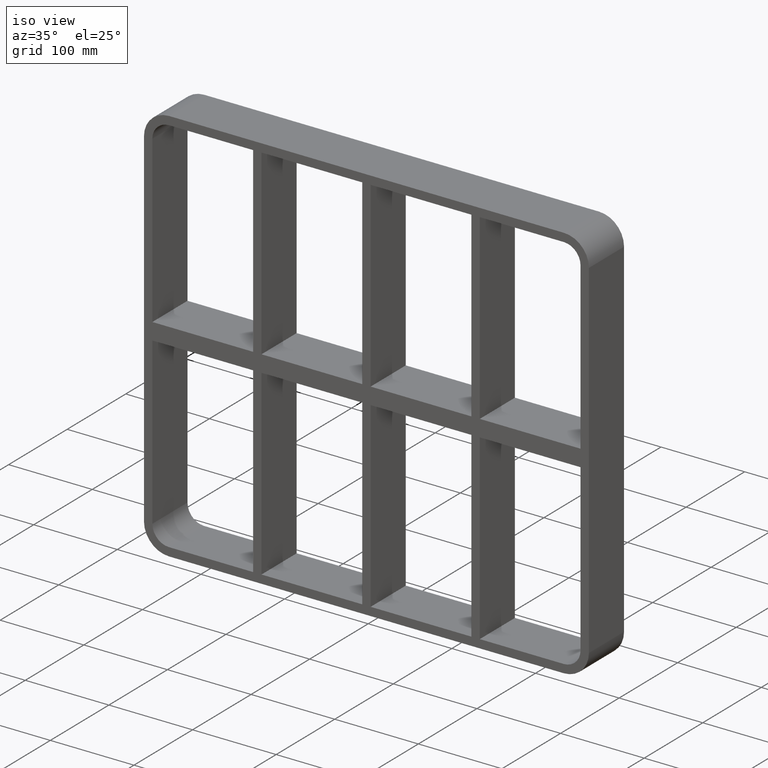
[diagram: clean part render]
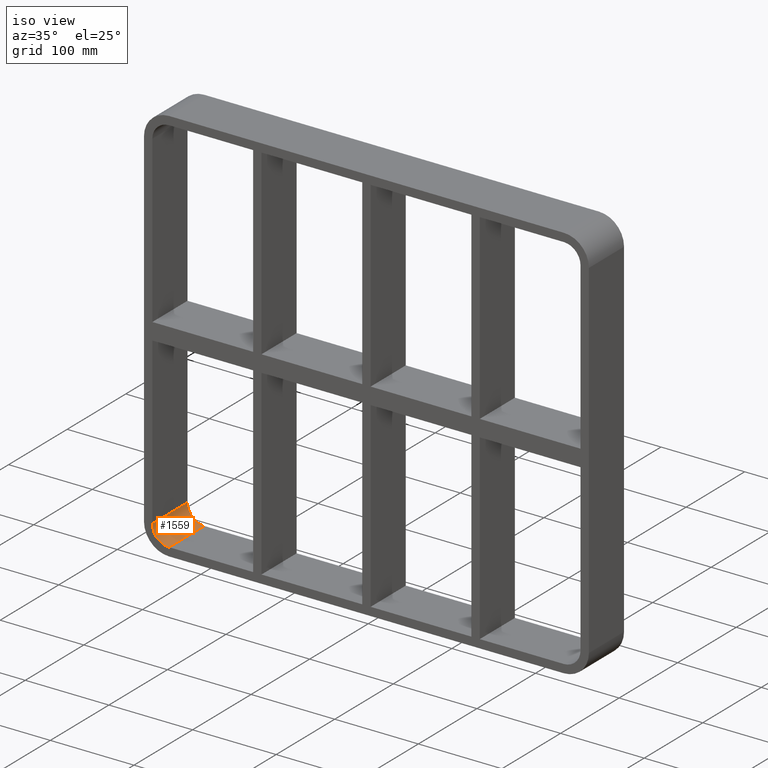
[diagram: same view with one face highlighted and labeled with its STEP entity id]
A machine part, iso view. The second image highlights one B-rep face of the part: STEP entity #1559.
In plain terms, the highlighted cylindrical surface (edge-blend (fillet) strip) has radius 20 mm, axis along (0, 1, 0).
Its self-contained STEP definition (entity closure, byte-faithful):
#739=CARTESIAN_POINT('',(-236.0,-3.0,-228.0));
#740=VERTEX_POINT('',#739);
#747=CARTESIAN_POINT('',(-256.0,-3.0,-208.0));
#748=VERTEX_POINT('',#747);
#749=CARTESIAN_POINT('',(-236.0,-3.0,-208.0));
#750=DIRECTION('',(0.0,-1.0,0.0));
#751=DIRECTION('',(-0.707106781186547,0.0,-0.707106781186547));
#752=AXIS2_PLACEMENT_3D('',#749,#750,#751);
#753=CIRCLE('',#752,19.999999999999996);
#754=EDGE_CURVE('',#748,#740,#753,.T.);
#1025=CARTESIAN_POINT('',(-256.0,57.0,-208.0));
#1026=VERTEX_POINT('',#1025);
#1033=CARTESIAN_POINT('',(-236.0,57.0,-228.0));
#1034=VERTEX_POINT('',#1033);
#1035=CARTESIAN_POINT('',(-236.0,57.0,-208.0));
#1036=DIRECTION('',(0.0,1.0,0.0));
#1037=DIRECTION('',(-0.707106781186547,0.0,-0.707106781186547));
#1038=AXIS2_PLACEMENT_3D('',#1035,#1036,#1037);
#1039=CIRCLE('',#1038,19.999999999999996);
#1040=EDGE_CURVE('',#1034,#1026,#1039,.T.);
#1356=CARTESIAN_POINT('',(-236.0,-3.0,-228.0));
#1357=DIRECTION('',(0.0,1.0,0.0));
#1358=VECTOR('',#1357,60.0);
#1359=LINE('',#1356,#1358);
#1360=EDGE_CURVE('',#740,#1034,#1359,.T.);
#1526=CARTESIAN_POINT('',(-256.0,57.0,-208.0));
#1527=DIRECTION('',(0.0,-1.0,0.0));
#1528=VECTOR('',#1527,60.0);
#1529=LINE('',#1526,#1528);
#1530=EDGE_CURVE('',#1026,#748,#1529,.T.);
#1548=CARTESIAN_POINT('',(-236.0,0.0,-208.0));
#1549=DIRECTION('',(0.0,1.0,0.0));
#1550=DIRECTION('',(-0.707106781186547,0.0,-0.707106781186547));
#1551=AXIS2_PLACEMENT_3D('',#1548,#1549,#1550);
#1552=CYLINDRICAL_SURFACE('',#1551,20.0);
#1553=ORIENTED_EDGE('',*,*,#754,.T.);
#1554=ORIENTED_EDGE('',*,*,#1360,.T.);
#1555=ORIENTED_EDGE('',*,*,#1040,.T.);
#1556=ORIENTED_EDGE('',*,*,#1530,.T.);
#1557=EDGE_LOOP('',(#1553,#1554,#1555,#1556));
#1558=FACE_OUTER_BOUND('',#1557,.T.);
#1559=ADVANCED_FACE('',(#1558),#1552,.F.);